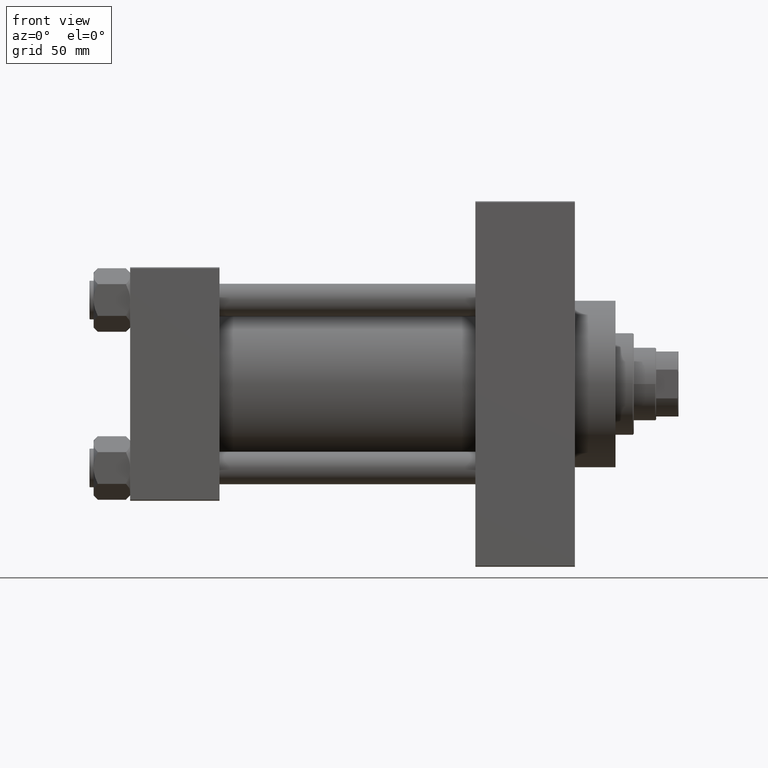
[diagram: clean part render]
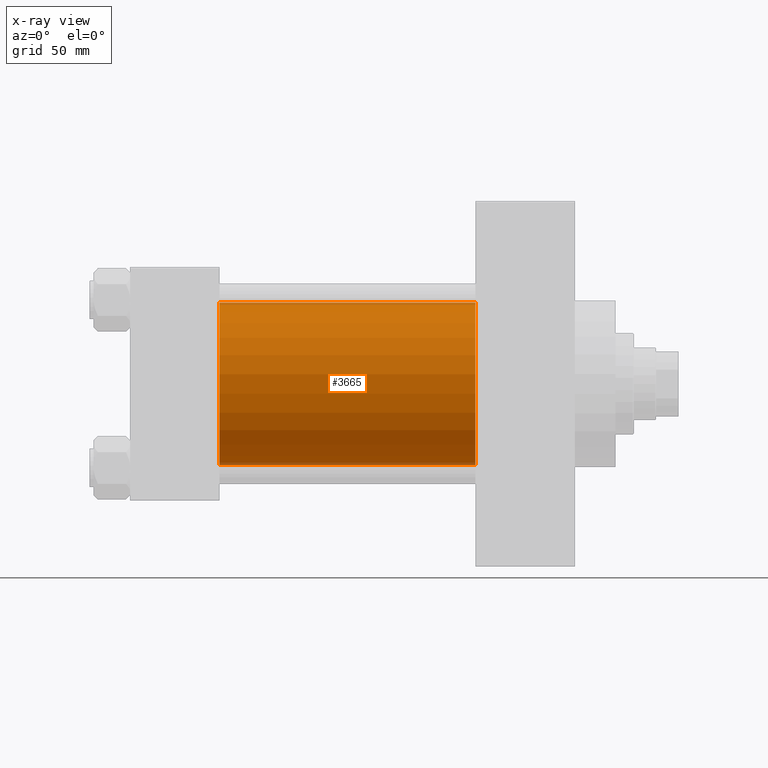
[diagram: x-ray — body ghosted, one internal face saturated and labeled with its STEP entity id]
A machine part, front view, then the same camera in x-ray: the body is ghosted and one INTERNAL B-rep face — a face not visible from any outside direction — is saturated and labeled: STEP entity #3665.
In plain terms, the highlighted cylindrical surface (partial cylindrical patch) has radius 40 mm, axis along (-1, -0, -0).
Its self-contained STEP definition (entity closure, byte-faithful):
#772 = VERTEX_POINT ( 'NONE', #16261 ) ;
#1642 = EDGE_CURVE ( 'NONE', #4384, #772, #36545, .T. ) ;
#3665 = ADVANCED_FACE ( 'NONE', ( #30590 ), #34444, .F. ) ;
#4323 = DIRECTION ( 'NONE',  ( 0.000000000000000000, 0.000000000000000000, 1.000000000000000000 ) ) ;
#4384 = VERTEX_POINT ( 'NONE', #38902 ) ;
#5481 = CIRCLE ( 'NONE', #30989, 40.00000000000000000 ) ;
#6079 = EDGE_CURVE ( 'NONE', #772, #12993, #20843, .T. ) ;
#7180 = ORIENTED_EDGE ( 'NONE', *, *, #6079, .F. ) ;
#7301 = DIRECTION ( 'NONE',  ( 0.000000000000000000, 0.000000000000000000, -1.000000000000000000 ) ) ;
#8012 = DIRECTION ( 'NONE',  ( 1.000000000000000000, 0.000000000000000000, 0.000000000000000000 ) ) ;
#8443 = CARTESIAN_POINT ( 'NONE',  ( 44.00000000000000000, 2.296501982624201990E-15, -40.00000000000000000 ) ) ;
#10328 = VECTOR ( 'NONE', #23818, 1000.000000000000000 ) ;
#10366 = EDGE_CURVE ( 'NONE', #4384, #29126, #5481, .T. ) ;
#12261 = ORIENTED_EDGE ( 'NONE', *, *, #1642, .F. ) ;
#12993 = VERTEX_POINT ( 'NONE', #8443 ) ;
#13637 = DIRECTION ( 'NONE',  ( -1.000000000000000000, -0.000000000000000000, -0.000000000000000000 ) ) ;
#16261 = CARTESIAN_POINT ( 'NONE',  ( 44.00000000000000000, -2.602085213965210642E-15, 40.00000000000000000 ) ) ;
#18527 = CARTESIAN_POINT ( 'NONE',  ( 44.00000000000000000, -2.602085213965210642E-15, 0.000000000000000000 ) ) ;
#20092 = AXIS2_PLACEMENT_3D ( 'NONE', #18527, #22372, #37083 ) ;
#20437 = LINE ( 'NONE', #28146, #10328 ) ;
#20709 = VECTOR ( 'NONE', #13637, 1000.000000000000000 ) ;
#20843 = CIRCLE ( 'NONE', #20092, 40.00000000000000000 ) ;
#20884 = CARTESIAN_POINT ( 'NONE',  ( 169.9999999999999716, -2.602085213965210642E-15, 40.00000000000000000 ) ) ;
#22372 = DIRECTION ( 'NONE',  ( 1.000000000000000000, 0.000000000000000000, 0.000000000000000000 ) ) ;
#23818 = DIRECTION ( 'NONE',  ( -1.000000000000000000, -0.000000000000000000, -0.000000000000000000 ) ) ;
#24300 = EDGE_CURVE ( 'NONE', #29126, #12993, #20437, .T. ) ;
#25239 = ORIENTED_EDGE ( 'NONE', *, *, #24300, .T. ) ;
#28146 = CARTESIAN_POINT ( 'NONE',  ( 169.9999999999999716, 2.296501982624201990E-15, -40.00000000000000000 ) ) ;
#29126 = VERTEX_POINT ( 'NONE', #40000 ) ;
#30590 = FACE_OUTER_BOUND ( 'NONE', #41734, .T. ) ;
#30825 = DIRECTION ( 'NONE',  ( -1.000000000000000000, -0.000000000000000000, -0.000000000000000000 ) ) ;
#30989 = AXIS2_PLACEMENT_3D ( 'NONE', #41045, #8012, #7301 ) ;
#34444 = CYLINDRICAL_SURFACE ( 'NONE', #36165, 40.00000000000000000 ) ;
#36165 = AXIS2_PLACEMENT_3D ( 'NONE', #41439, #30825, #4323 ) ;
#36545 = LINE ( 'NONE', #20884, #20709 ) ;
#37083 = DIRECTION ( 'NONE',  ( 0.000000000000000000, 0.000000000000000000, -1.000000000000000000 ) ) ;
#38902 = CARTESIAN_POINT ( 'NONE',  ( 169.9999999999999716, -2.602085213965210642E-15, 40.00000000000000000 ) ) ;
#40000 = CARTESIAN_POINT ( 'NONE',  ( 169.9999999999999716, 2.296501982624201990E-15, -40.00000000000000000 ) ) ;
#41045 = CARTESIAN_POINT ( 'NONE',  ( 169.9999999999999716, -2.602085213965210642E-15, 0.000000000000000000 ) ) ;
#41439 = CARTESIAN_POINT ( 'NONE',  ( 169.9999999999999716, -2.602085213965210642E-15, 0.000000000000000000 ) ) ;
#41734 = EDGE_LOOP ( 'NONE', ( #45345, #25239, #7180, #12261 ) ) ;
#45345 = ORIENTED_EDGE ( 'NONE', *, *, #10366, .T. ) ;